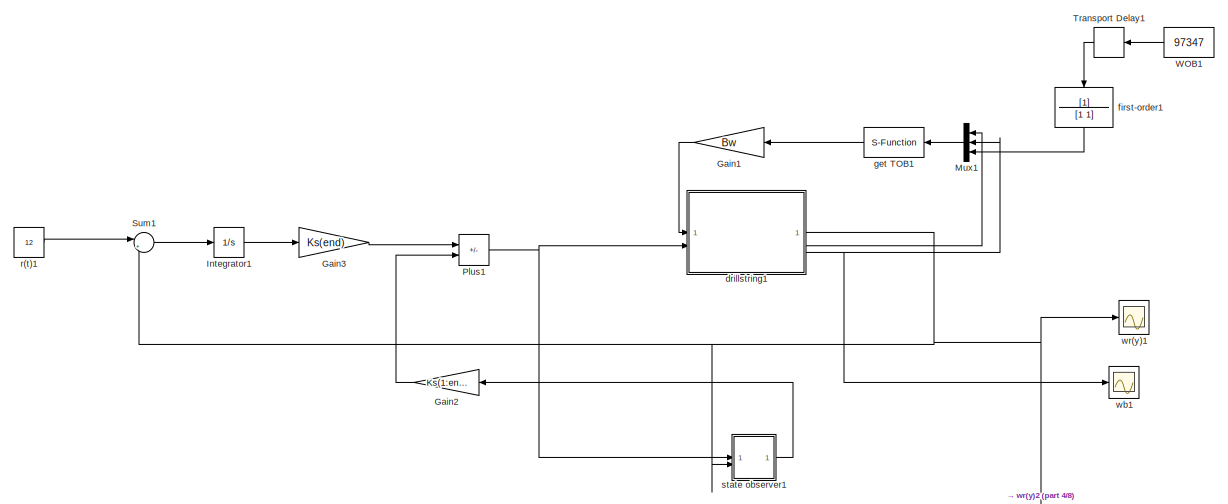
[diagram: root canvas - part 1/8, top right region]
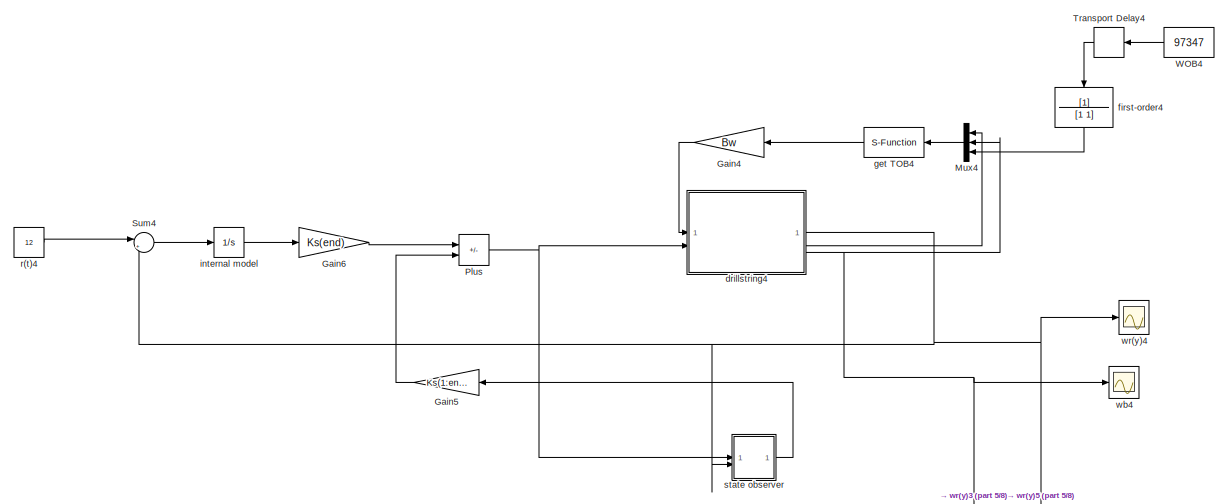
[diagram: root canvas - part 2/8, top left region]
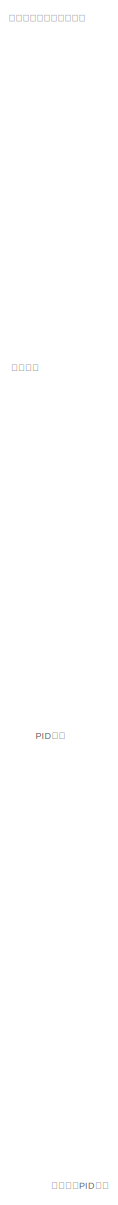
[diagram: root canvas - part 3/8, middle left region]
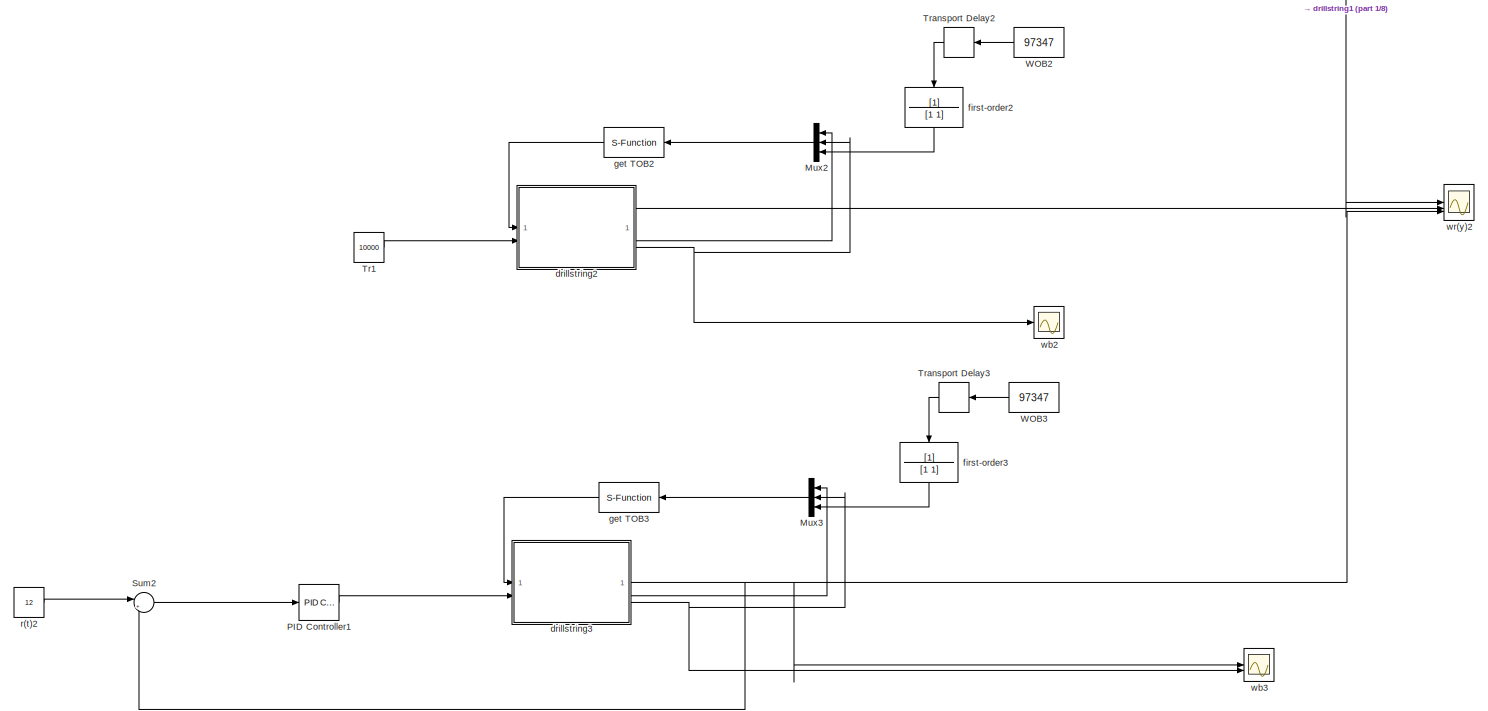
[diagram: root canvas - part 4/8, middle right region]
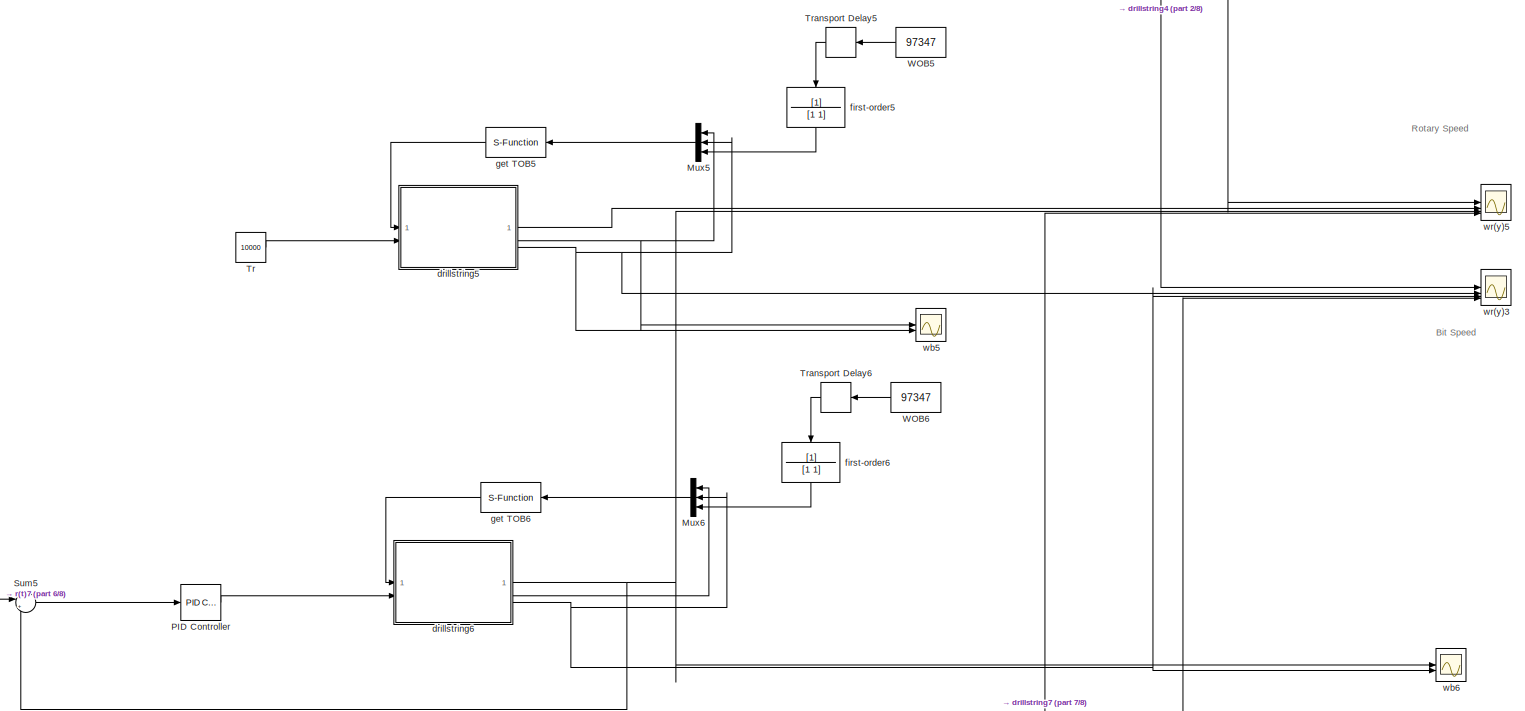
[diagram: root canvas - part 5/8, middle left region]
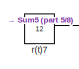
[diagram: root canvas - part 6/8, bottom left region]
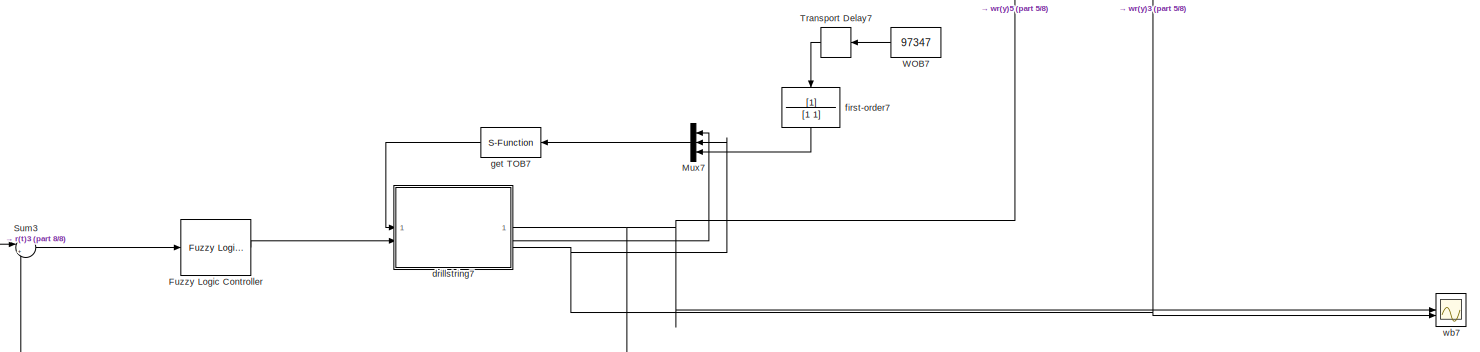
[diagram: root canvas - part 7/8, bottom left region]
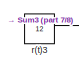
[diagram: root canvas - part 8/8, bottom left region]
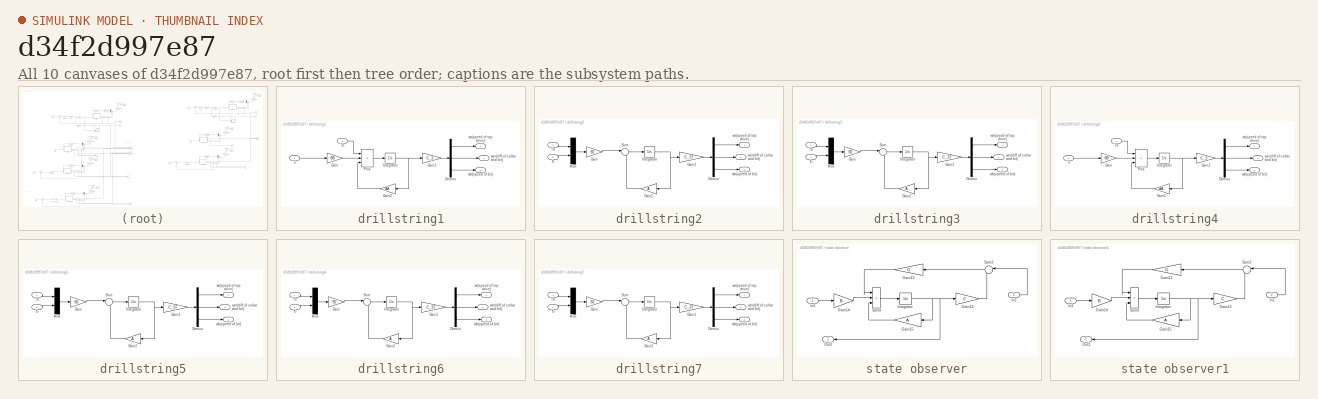
[diagram: thumbnail index - all 10 canvases of the model, root first then tree order]
MODEL slx_d34f2d997e87
KIND model
CONFIG AbsTol = auto
CONFIG EnableMultiTasking = off
CONFIG FixedStep = 0.001
CONFIG MaxStep = auto
CONFIG MinStep = auto
CONFIG RelTol = 1e-3
CONFIG SampleTimeConstraint = Unconstrained
CONFIG SolverName = FixedStepAuto
CONFIG StartTime = 0.0
CONFIG StopTime = 100
BLOCK [Reference] Fuzzy Logic Controller  REF=fuzblock/Fuzzy Logic   (lib defined in mdl_858b3b3e7478)
Controller
  Commented = on
  SourceBlock = fuzblock/Fuzzy Logic \nController
  SourceType = Fuzzy Inference System
BLOCK [Gain] Gain1
  Commented = on
  Gain = Bw
  Multiplication = Matrix(K*u)
  NameLocation = top
BLOCK [Gain] Gain2
  Commented = on
  Gain = Ks(1:end-1)
  Multiplication = Matrix(K*u)
  NameLocation = top
BLOCK [Gain] Gain3
  Commented = on
  Gain = Ks(end)
  Multiplication = Matrix(K*u)
BLOCK [Gain] Gain4
  Gain = Bw
  Multiplication = Matrix(K*u)
  NameLocation = top
BLOCK [Gain] Gain5
  Gain = Ks(1:end-1)
  Multiplication = Matrix(K*u)
  NameLocation = top
BLOCK [Gain] Gain6
  Gain = Ks(end)
  Multiplication = Matrix(K*u)
BLOCK [Integrator] Integrator1
  Commented = on
BLOCK [Mux] Mux1
  Commented = on
  DisplayOption = bar
  Inputs = 3
  NameLocation = top
BLOCK [Mux] Mux2
  Commented = on
  DisplayOption = bar
  Inputs = 3
  NameLocation = top
BLOCK [Mux] Mux3
  Commented = on
  DisplayOption = bar
  Inputs = 3
  NameLocation = top
BLOCK [Mux] Mux4
  DisplayOption = bar
  Inputs = 3
  NameLocation = top
BLOCK [Mux] Mux5
  DisplayOption = bar
  Inputs = 3
  NameLocation = top
BLOCK [Mux] Mux6
  DisplayOption = bar
  Inputs = 3
  NameLocation = top
BLOCK [Mux] Mux7
  Commented = on
  DisplayOption = bar
  Inputs = 3
  NameLocation = top
BLOCK [Reference] PID Controller  REF=slpidlib/PID Controller
  LibrarySourceBlock = simulink/Continuous/PID Controller
  SourceBlock = slpidlib/PID Controller
  SourceType = PID 1dof
BLOCK [Reference] PID Controller1  REF=slpidlib/PID Controller
  Commented = on
  LibrarySourceBlock = simulink/Continuous/PID Controller
  SourceBlock = slpidlib/PID Controller
  SourceType = PID 1dof
BLOCK [Sum] Plus
  IconShape = rectangular
  Inputs = --
BLOCK [Sum] Plus1
  Commented = on
  IconShape = rectangular
  Inputs = --
BLOCK [Sum] Sum1
  Commented = on
  Inputs = |+-
BLOCK [Sum] Sum2
  Commented = on
  Inputs = |+-
BLOCK [Sum] Sum3
  Commented = on
  Inputs = |+-
BLOCK [Sum] Sum4
  Inputs = |+-
BLOCK [Sum] Sum5
  Inputs = |+-
BLOCK [Constant] Tr
  NameLocation = top
  Value = 10000
BLOCK [Constant] Tr1
  Commented = on
  NameLocation = top
  Value = 10000
BLOCK [TransportDelay] Transport Delay1
  Commented = on
  DelayTime = 50
  InitialOutput = 100000
  NameLocation = top
BLOCK [TransportDelay] Transport Delay2
  Commented = on
  DelayTime = 50
  InitialOutput = 100000
  NameLocation = top
BLOCK [TransportDelay] Transport Delay3
  Commented = on
  DelayTime = 50
  InitialOutput = 100000
  NameLocation = top
BLOCK [TransportDelay] Transport Delay4
  DelayTime = 50
  InitialOutput = 100000
  NameLocation = top
BLOCK [TransportDelay] Transport Delay5
  DelayTime = 50
  InitialOutput = 100000
  NameLocation = top
BLOCK [TransportDelay] Transport Delay6
  DelayTime = 50
  InitialOutput = 100000
  NameLocation = top
BLOCK [TransportDelay] Transport Delay7
  Commented = on
  DelayTime = 50
  InitialOutput = 100000
  NameLocation = top
BLOCK [Constant] WOB1
  Commented = on
  NameLocation = top
  Value = 97347
BLOCK [Constant] WOB2
  Commented = on
  NameLocation = top
  Value = 97347
BLOCK [Constant] WOB3
  Commented = on
  NameLocation = top
  Value = 97347
BLOCK [Constant] WOB4
  NameLocation = top
  Value = 97347
BLOCK [Constant] WOB5
  NameLocation = top
  Value = 97347
BLOCK [Constant] WOB6
  NameLocation = top
  Value = 97347
BLOCK [Constant] WOB7
  Commented = on
  NameLocation = top
  Value = 97347
BLOCK [SubSystem] drillstring1
  Commented = on
BLOCK [Demux] drillstring1/Demux
  Outputs = 3
BLOCK [Gain] drillstring1/Gain
  Gain = BB
  Multiplication = Matrix(K*u)
BLOCK [Gain] drillstring1/Gain1
  Gain = C_3
  Multiplication = Matrix(K*u)
BLOCK [Gain] drillstring1/Gain2
  Gain = AA
  Multiplication = Matrix(K*u)
  NameLocation = top
BLOCK [Integrator] drillstring1/Integrator
BLOCK [Sum] drillstring1/Plus
  IconShape = rectangular
  Inputs = +++
BLOCK [Inport] drillstring1/Tb
BLOCK [Inport] drillstring1/Tr
  Port = 2
BLOCK [Outport] drillstring1/wb(speed of bit)
  Port = 3
BLOCK [Outport] drillstring1/wer(diff of collar and bit)
  Port = 2
BLOCK [Outport] drillstring1/wr(speed of top drive)
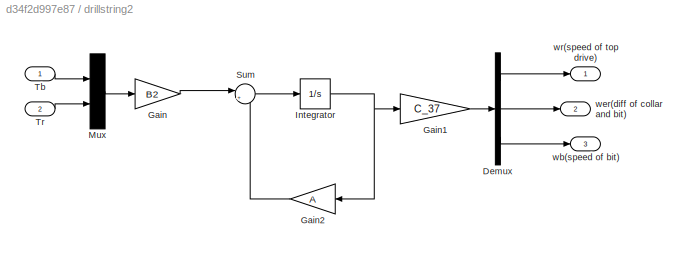
BLOCK [SubSystem] drillstring2
  Commented = on
BLOCK [Demux] drillstring2/Demux
  Outputs = 3
BLOCK [Gain] drillstring2/Gain
  Gain = B2
  Multiplication = Matrix(K*u)
BLOCK [Gain] drillstring2/Gain1
  Gain = C_37
  Multiplication = Matrix(K*u)
BLOCK [Gain] drillstring2/Gain2
  Gain = A
  Multiplication = Matrix(K*u)
  NameLocation = top
BLOCK [Integrator] drillstring2/Integrator
BLOCK [Mux] drillstring2/Mux
  DisplayOption = bar
  Inputs = 2
BLOCK [Sum] drillstring2/Sum
  Inputs = |++
BLOCK [Inport] drillstring2/Tb
BLOCK [Inport] drillstring2/Tr
  Port = 2
BLOCK [Outport] drillstring2/wb(speed of bit)
  Port = 3
BLOCK [Outport] drillstring2/wer(diff of collar and bit)
  Port = 2
BLOCK [Outport] drillstring2/wr(speed of top drive)
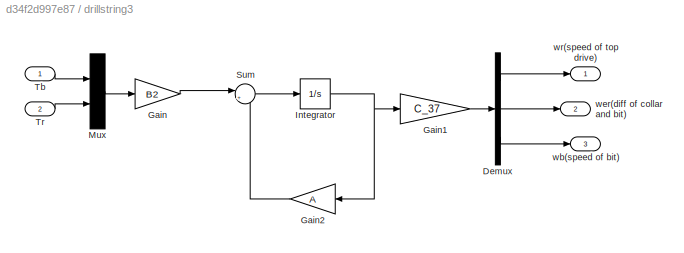
BLOCK [SubSystem] drillstring3
  Commented = on
BLOCK [Demux] drillstring3/Demux
  Outputs = 3
BLOCK [Gain] drillstring3/Gain
  Gain = B2
  Multiplication = Matrix(K*u)
BLOCK [Gain] drillstring3/Gain1
  Gain = C_37
  Multiplication = Matrix(K*u)
BLOCK [Gain] drillstring3/Gain2
  Gain = A
  Multiplication = Matrix(K*u)
  NameLocation = top
BLOCK [Integrator] drillstring3/Integrator
BLOCK [Mux] drillstring3/Mux
  DisplayOption = bar
  Inputs = 2
BLOCK [Sum] drillstring3/Sum
  Inputs = |++
BLOCK [Inport] drillstring3/Tb
BLOCK [Inport] drillstring3/Tr
  Port = 2
BLOCK [Outport] drillstring3/wb(speed of bit)
  Port = 3
BLOCK [Outport] drillstring3/wer(diff of collar and bit)
  Port = 2
BLOCK [Outport] drillstring3/wr(speed of top drive)
BLOCK [SubSystem] drillstring4
BLOCK [Demux] drillstring4/Demux
  Outputs = 3
BLOCK [Gain] drillstring4/Gain
  Gain = BB
  Multiplication = Matrix(K*u)
BLOCK [Gain] drillstring4/Gain1
  Gain = C_3
  Multiplication = Matrix(K*u)
BLOCK [Gain] drillstring4/Gain2
  Gain = AA
  Multiplication = Matrix(K*u)
  NameLocation = top
BLOCK [Integrator] drillstring4/Integrator
BLOCK [Sum] drillstring4/Plus
  IconShape = rectangular
  Inputs = +++
BLOCK [Inport] drillstring4/Tb
BLOCK [Inport] drillstring4/Tr
  Port = 2
BLOCK [Outport] drillstring4/wb(speed of bit)
  Port = 3
BLOCK [Outport] drillstring4/wer(diff of collar and bit)
  Port = 2
BLOCK [Outport] drillstring4/wr(speed of top drive)
BLOCK [SubSystem] drillstring5
BLOCK [Demux] drillstring5/Demux
  Outputs = 3
BLOCK [Gain] drillstring5/Gain
  Gain = B2
  Multiplication = Matrix(K*u)
BLOCK [Gain] drillstring5/Gain1
  Gain = C_37
  Multiplication = Matrix(K*u)
BLOCK [Gain] drillstring5/Gain2
  Gain = A
  Multiplication = Matrix(K*u)
  NameLocation = top
BLOCK [Integrator] drillstring5/Integrator
BLOCK [Mux] drillstring5/Mux
  DisplayOption = bar
  Inputs = 2
BLOCK [Sum] drillstring5/Sum
  Inputs = |++
BLOCK [Inport] drillstring5/Tb
BLOCK [Inport] drillstring5/Tr
  Port = 2
BLOCK [Outport] drillstring5/wb(speed of bit)
  Port = 3
BLOCK [Outport] drillstring5/wer(diff of collar and bit)
  Port = 2
BLOCK [Outport] drillstring5/wr(speed of top drive)
BLOCK [SubSystem] drillstring6
BLOCK [Demux] drillstring6/Demux
  Outputs = 3
BLOCK [Gain] drillstring6/Gain
  Gain = B2
  Multiplication = Matrix(K*u)
BLOCK [Gain] drillstring6/Gain1
  Gain = C_37
  Multiplication = Matrix(K*u)
BLOCK [Gain] drillstring6/Gain2
  Gain = A
  Multiplication = Matrix(K*u)
  NameLocation = top
BLOCK [Integrator] drillstring6/Integrator
BLOCK [Mux] drillstring6/Mux
  DisplayOption = bar
  Inputs = 2
BLOCK [Sum] drillstring6/Sum
  Inputs = |++
BLOCK [Inport] drillstring6/Tb
BLOCK [Inport] drillstring6/Tr
  Port = 2
BLOCK [Outport] drillstring6/wb(speed of bit)
  Port = 3
BLOCK [Outport] drillstring6/wer(diff of collar and bit)
  Port = 2
BLOCK [Outport] drillstring6/wr(speed of top drive)
BLOCK [SubSystem] drillstring7
  Commented = on
BLOCK [Demux] drillstring7/Demux
  Outputs = 3
BLOCK [Gain] drillstring7/Gain
  Gain = B2
  Multiplication = Matrix(K*u)
BLOCK [Gain] drillstring7/Gain1
  Gain = C_37
  Multiplication = Matrix(K*u)
BLOCK [Gain] drillstring7/Gain2
  Gain = A
  Multiplication = Matrix(K*u)
  NameLocation = top
BLOCK [Integrator] drillstring7/Integrator
BLOCK [Mux] drillstring7/Mux
  DisplayOption = bar
  Inputs = 2
BLOCK [Sum] drillstring7/Sum
  Inputs = |++
BLOCK [Inport] drillstring7/Tb
BLOCK [Inport] drillstring7/Tr
  Port = 2
BLOCK [Outport] drillstring7/wb(speed of bit)
  Port = 3
BLOCK [Outport] drillstring7/wer(diff of collar and bit)
  Port = 2
BLOCK [Outport] drillstring7/wr(speed of top drive)
BLOCK [TransferFcn] first-order1
  Commented = on
  Denominator = [1 1]
  NameLocation = left
BLOCK [TransferFcn] first-order2
  Commented = on
  Denominator = [1 1]
  NameLocation = left
BLOCK [TransferFcn] first-order3
  Commented = on
  Denominator = [1 1]
  NameLocation = left
BLOCK [TransferFcn] first-order4
  Denominator = [1 1]
  NameLocation = left
BLOCK [TransferFcn] first-order5
  Denominator = [1 1]
  NameLocation = left
BLOCK [TransferFcn] first-order6
  Denominator = [1 1]
  NameLocation = left
BLOCK [TransferFcn] first-order7
  Commented = on
  Denominator = [1 1]
  NameLocation = left
BLOCK [S-Function] get TOB1
  Commented = on
  EnableBusSupport = off
  FunctionName = bitrock
  SFcnIsStateOwnerBlock = off
  SFunctionDeploymentMode = off
BLOCK [S-Function] get TOB2
  Commented = on
  EnableBusSupport = off
  FunctionName = bitrock
  SFcnIsStateOwnerBlock = off
  SFunctionDeploymentMode = off
BLOCK [S-Function] get TOB3
  Commented = on
  EnableBusSupport = off
  FunctionName = bitrock
  SFcnIsStateOwnerBlock = off
  SFunctionDeploymentMode = off
BLOCK [S-Function] get TOB4
  EnableBusSupport = off
  FunctionName = bitrock
  SFcnIsStateOwnerBlock = off
  SFunctionDeploymentMode = off
BLOCK [S-Function] get TOB5
  EnableBusSupport = off
  FunctionName = bitrock
  SFcnIsStateOwnerBlock = off
  SFunctionDeploymentMode = off
BLOCK [S-Function] get TOB6
  EnableBusSupport = off
  FunctionName = bitrock
  SFcnIsStateOwnerBlock = off
  SFunctionDeploymentMode = off
BLOCK [S-Function] get TOB7
  Commented = on
  EnableBusSupport = off
  FunctionName = bitrock
  SFcnIsStateOwnerBlock = off
  SFunctionDeploymentMode = off
BLOCK [Integrator] internal model
BLOCK [Constant] r(t)1
  Commented = on
  NameLocation = top
  Value = 12
BLOCK [Constant] r(t)2
  Commented = on
  NameLocation = top
  Value = 12
BLOCK [Constant] r(t)3
  Commented = on
  NameLocation = top
  Value = 12
BLOCK [Constant] r(t)4
  NameLocation = top
  Value = 12
BLOCK [Constant] r(t)7
  NameLocation = top
  Value = 12
BLOCK [SubSystem] state observer
BLOCK [Gain] state observer/Gain12
  Gain = G
  Multiplication = Matrix(K*u)
  NameLocation = top
BLOCK [Gain] state observer/Gain13
  Gain = C
  Multiplication = Matrix(K*u)
BLOCK [Gain] state observer/Gain14
  Gain = B
  Multiplication = Matrix(K*u)
BLOCK [Gain] state observer/Gain15
  Gain = A
  Multiplication = Matrix(K*u)
  NameLocation = top
BLOCK [Inport] state observer/In1
BLOCK [Inport] state observer/In2
  Port = 2
BLOCK [Integrator] state observer/Integrator
BLOCK [Outport] state observer/Out1
  NameLocation = top
BLOCK [Sum] state observer/Sum3
  Inputs = |+-
  NameLocation = top
BLOCK [Sum] state observer/Sum4
  IconShape = rectangular
  Inputs = |+++
BLOCK [SubSystem] state observer1
  Commented = on
BLOCK [Gain] state observer1/Gain12
  Gain = G
  Multiplication = Matrix(K*u)
  NameLocation = top
BLOCK [Gain] state observer1/Gain13
  Gain = C
  Multiplication = Matrix(K*u)
BLOCK [Gain] state observer1/Gain14
  Gain = B
  Multiplication = Matrix(K*u)
BLOCK [Gain] state observer1/Gain15
  Gain = A
  Multiplication = Matrix(K*u)
  NameLocation = top
BLOCK [Inport] state observer1/In1
BLOCK [Inport] state observer1/In2
  Port = 2
BLOCK [Integrator] state observer1/Integrator
BLOCK [Outport] state observer1/Out1
  NameLocation = top
BLOCK [Sum] state observer1/Sum3
  Inputs = |+-
  NameLocation = top
BLOCK [Sum] state observer1/Sum4
  IconShape = rectangular
  Inputs = |+++
BLOCK [Scope] wb1
  Commented = on
  Floating = off
  NumInputPorts = 1
  ScopeSpecificationString = Simulink.scopes.TimeScopeBlockCfg('CurrentConfiguration', extmgr.ConfigurationSet(extmgr.Configuration('Core','General UI',true),extmgr.Configuration('Core','Source UI',true),extmgr.Configuration('Sources','WiredSimulink',true),extmgr.Configuration('Visuals','Time Domain',true,'SerializedDisplays',{struct('MinYLimReal','-1.07784','MaxYLimReal','20','YLabelReal','','MinYLimMag','0.00000','MaxYLimMa...<+1515ch>
BLOCK [Scope] wb2
  Commented = on
  Floating = off
  NumInputPorts = 1
  ScopeSpecificationString = Simulink.scopes.TimeScopeBlockCfg('CurrentConfiguration', extmgr.ConfigurationSet(extmgr.Configuration('Core','General UI',true),extmgr.Configuration('Core','Source UI',true),extmgr.Configuration('Sources','WiredSimulink',true,'DataLoggingVariableName','ScopeData1'),extmgr.Configuration('Visuals','Time Domain',true,'SerializedDisplays',{struct('MinYLimReal','-1.07784','MaxYLimReal','20','YLabelRea...<+1554ch>
BLOCK [Scope] wb3
  Commented = on
  Floating = off
  NumInputPorts = 2
  ScopeSpecificationString = Simulink.scopes.TimeScopeBlockCfg('CurrentConfiguration', extmgr.ConfigurationSet(extmgr.Configuration('Core','General UI',true),extmgr.Configuration('Core','Source UI',true),extmgr.Configuration('Sources','WiredSimulink',true,'DataLoggingVariableName','ScopeData2'),extmgr.Configuration('Visuals','Time Domain',true,'SerializedDisplays',{struct('MinYLimReal','-1.07784','MaxYLimReal','20','YLabelRea...<+1575ch>
BLOCK [Scope] wb4
  Floating = off
  NumInputPorts = 1
  ScopeSpecificationString = Simulink.scopes.TimeScopeBlockCfg('CurrentConfiguration', extmgr.ConfigurationSet(extmgr.Configuration('Core','General UI',true),extmgr.Configuration('Core','Source UI',true),extmgr.Configuration('Sources','WiredSimulink',true,'DataLoggingVariableName','ScopeData7'),extmgr.Configuration('Visuals','Time Domain',true,'SerializedDisplays',{struct('MinYLimReal','-1.07784','MaxYLimReal','20','YLabelRea...<+1554ch>
BLOCK [Scope] wb5
  Floating = off
  NumInputPorts = 2
  ScopeSpecificationString = Simulink.scopes.TimeScopeBlockCfg('CurrentConfiguration', extmgr.ConfigurationSet(extmgr.Configuration('Core','General UI',true),extmgr.Configuration('Core','Source UI',true),extmgr.Configuration('Sources','WiredSimulink',true,'DataLoggingVariableName','ScopeData9'),extmgr.Configuration('Visuals','Time Domain',true,'SerializedDisplays',{struct('MinYLimReal','-1.07784','MaxYLimReal','20','YLabelRea...<+1554ch>
BLOCK [Scope] wb6
  Floating = off
  NumInputPorts = 2
  ScopeSpecificationString = Simulink.scopes.TimeScopeBlockCfg('CurrentConfiguration', extmgr.ConfigurationSet(extmgr.Configuration('Core','General UI',true),extmgr.Configuration('Core','Source UI',true),extmgr.Configuration('Sources','WiredSimulink',true,'DataLoggingVariableName','ScopeData11'),extmgr.Configuration('Visuals','Time Domain',true,'SerializedDisplays',{struct('MinYLimReal','-1.07784','MaxYLimReal','20','YLabelRe...<+1576ch>
BLOCK [Scope] wb7
  Commented = on
  Floating = off
  NumInputPorts = 2
  ScopeSpecificationString = Simulink.scopes.TimeScopeBlockCfg('CurrentConfiguration', extmgr.ConfigurationSet(extmgr.Configuration('Core','General UI',true),extmgr.Configuration('Core','Source UI',true),extmgr.Configuration('Sources','WiredSimulink',true,'DataLoggingVariableName','ScopeData1'),extmgr.Configuration('Visuals','Time Domain',true,'SerializedDisplays',{struct('MinYLimReal','-1.07784','MaxYLimReal','20','YLabelRea...<+1572ch>
BLOCK [Scope] wr(y)1
  Commented = on
  Floating = off
  NumInputPorts = 1
  ScopeSpecificationString = Simulink.scopes.TimeScopeBlockCfg('CurrentConfiguration', extmgr.ConfigurationSet(extmgr.Configuration('Core','General UI',true),extmgr.Configuration('Core','Source UI',true),extmgr.Configuration('Sources','WiredSimulink',true,'DataLoggingVariableName','ScopeData3'),extmgr.Configuration('Visuals','Time Domain',true,'SerializedDisplays',{struct('MinYLimReal','0','MaxYLimReal','20','YLabelReal','','...<+1540ch>
BLOCK [Scope] wr(y)2
  Commented = on
  Floating = off
  NumInputPorts = 3
  ScopeSpecificationString = Simulink.scopes.TimeScopeBlockCfg('CurrentConfiguration', extmgr.ConfigurationSet(extmgr.Configuration('Core','General UI',true,'FigureColor',[0 0 0]),extmgr.Configuration('Core','Source UI',true),extmgr.Configuration('Sources','WiredSimulink',true,'DataLoggingVariableName','ScopeData4'),extmgr.Configuration('Visuals','Time Domain',true,'SerializedDisplays',{struct('MinYLimReal','-2','MaxYLimReal'...<+1933ch>
BLOCK [Scope] wr(y)3
  Floating = off
  NumInputPorts = 4
  ScopeSpecificationString = Simulink.scopes.TimeScopeBlockCfg('CurrentConfiguration', extmgr.ConfigurationSet(extmgr.Configuration('Core','General UI',true,'FigureColor',[0 0 0]),extmgr.Configuration('Core','Source UI',true),extmgr.Configuration('Sources','WiredSimulink',true,'DataLoggingVariableName','ScopeData5'),extmgr.Configuration('Visuals','Time Domain',true,'SerializedDisplays',{struct('MinYLimReal','-2','MaxYLimReal'...<+1934ch>
BLOCK [Scope] wr(y)4
  Floating = off
  NumInputPorts = 1
  ScopeSpecificationString = Simulink.scopes.TimeScopeBlockCfg('CurrentConfiguration', extmgr.ConfigurationSet(extmgr.Configuration('Core','General UI',true),extmgr.Configuration('Core','Source UI',true),extmgr.Configuration('Sources','WiredSimulink',true,'DataLoggingVariableName','ScopeData8'),extmgr.Configuration('Visuals','Time Domain',true,'SerializedDisplays',{struct('MinYLimReal','0','MaxYLimReal','20','YLabelReal','','...<+1540ch>
BLOCK [Scope] wr(y)5
  Floating = off
  NumInputPorts = 4
  ScopeSpecificationString = Simulink.scopes.TimeScopeBlockCfg('CurrentConfiguration', extmgr.ConfigurationSet(extmgr.Configuration('Core','General UI',true,'FigureColor',[0 0 0]),extmgr.Configuration('Core','Source UI',true),extmgr.Configuration('Sources','WiredSimulink',true,'DataLoggingVariableName','ScopeData10'),extmgr.Configuration('Visuals','Time Domain',true,'SerializedDisplays',{struct('MinYLimReal','-2','MaxYLimReal...<+1913ch>
ANNOTATION (root): PID控制
ANNOTATION (root): 单神经元PID控制
ANNOTATION (root): 未加控制
ANNOTATION (root): 状态观测器状态反馈控制
ANNOTATION (root): Bit Speed
ANNOTATION (root): Rotary Speed
LINE Fuzzy Logic Controller:1 -> drillstring7:2
LINE Gain1:1 -> drillstring1:1
LINE Gain2:1 -> Plus1:2
LINE Gain3:1 -> Plus1:1
LINE Gain4:1 -> drillstring4:1
LINE Gain5:1 -> Plus:2
LINE Gain6:1 -> Plus:1
LINE Integrator1:1 -> Gain3:1
LINE Mux1:1 -> get TOB1:1
LINE Mux2:1 -> get TOB2:1
LINE Mux3:1 -> get TOB3:1
LINE Mux4:1 -> get TOB4:1
LINE Mux5:1 -> get TOB5:1
LINE Mux6:1 -> get TOB6:1
LINE Mux7:1 -> get TOB7:1
LINE PID Controller1:1 -> drillstring3:2
LINE PID Controller:1 -> drillstring6:2
NET Plus1:1 -> drillstring1:2, state observer1:1
NET Plus:1 -> drillstring4:2, state observer:1
LINE Sum1:1 -> Integrator1:1
LINE Sum2:1 -> PID Controller1:1
LINE Sum3:1 -> Fuzzy Logic Controller:1
LINE Sum4:1 -> internal model:1
LINE Sum5:1 -> PID Controller:1
LINE Tr1:1 -> drillstring2:2
LINE Tr:1 -> drillstring5:2
LINE Transport Delay1:1 -> first-order1:1
LINE Transport Delay2:1 -> first-order2:1
LINE Transport Delay3:1 -> first-order3:1
LINE Transport Delay4:1 -> first-order4:1
LINE Transport Delay5:1 -> first-order5:1
LINE Transport Delay6:1 -> first-order6:1
LINE Transport Delay7:1 -> first-order7:1
LINE WOB1:1 -> Transport Delay1:1
LINE WOB2:1 -> Transport Delay2:1
LINE WOB3:1 -> Transport Delay3:1
LINE WOB4:1 -> Transport Delay4:1
LINE WOB5:1 -> Transport Delay5:1
LINE WOB6:1 -> Transport Delay6:1
LINE WOB7:1 -> Transport Delay7:1
LINE drillstring1/Demux:1 -> drillstring1/wr(speed of top drive):1
LINE drillstring1/Demux:2 -> drillstring1/wer(diff of collar and bit):1
LINE drillstring1/Demux:3 -> drillstring1/wb(speed of bit):1
LINE drillstring1/Gain1:1 -> drillstring1/Demux:1
LINE drillstring1/Gain2:1 -> drillstring1/Plus:3
LINE drillstring1/Gain:1 -> drillstring1/Plus:2
NET drillstring1/Integrator:1 -> drillstring1/Gain1:1, drillstring1/Gain2:1
LINE drillstring1/Plus:1 -> drillstring1/Integrator:1
LINE drillstring1/Tb:1 -> drillstring1/Plus:1
LINE drillstring1/Tr:1 -> drillstring1/Gain:1
NET drillstring1:1 -> Sum1:2, state observer1:2, wr(y)1:1, wr(y)2:1
LINE drillstring1:2 -> Mux1:1
NET drillstring1:3 -> Mux1:2, wb1:1
LINE drillstring2/Demux:1 -> drillstring2/wr(speed of top drive):1
LINE drillstring2/Demux:2 -> drillstring2/wer(diff of collar and bit):1
LINE drillstring2/Demux:3 -> drillstring2/wb(speed of bit):1
LINE drillstring2/Gain1:1 -> drillstring2/Demux:1
LINE drillstring2/Gain2:1 -> drillstring2/Sum:2
LINE drillstring2/Gain:1 -> drillstring2/Sum:1
NET drillstring2/Integrator:1 -> drillstring2/Gain1:1, drillstring2/Gain2:1
LINE drillstring2/Mux:1 -> drillstring2/Gain:1
LINE drillstring2/Sum:1 -> drillstring2/Integrator:1
LINE drillstring2/Tb:1 -> drillstring2/Mux:1
LINE drillstring2/Tr:1 -> drillstring2/Mux:2
LINE drillstring2:1 -> wr(y)2:2
LINE drillstring2:2 -> Mux2:1
NET drillstring2:3 -> Mux2:2, wb2:1
LINE drillstring3/Demux:1 -> drillstring3/wr(speed of top drive):1
LINE drillstring3/Demux:2 -> drillstring3/wer(diff of collar and bit):1
LINE drillstring3/Demux:3 -> drillstring3/wb(speed of bit):1
LINE drillstring3/Gain1:1 -> drillstring3/Demux:1
LINE drillstring3/Gain2:1 -> drillstring3/Sum:2
LINE drillstring3/Gain:1 -> drillstring3/Sum:1
NET drillstring3/Integrator:1 -> drillstring3/Gain1:1, drillstring3/Gain2:1
LINE drillstring3/Mux:1 -> drillstring3/Gain:1
LINE drillstring3/Sum:1 -> drillstring3/Integrator:1
LINE drillstring3/Tb:1 -> drillstring3/Mux:1
LINE drillstring3/Tr:1 -> drillstring3/Mux:2
NET drillstring3:1 -> Sum2:2, wb3:1, wr(y)2:3
LINE drillstring3:2 -> Mux3:1
NET drillstring3:3 -> Mux3:2, wb3:2
LINE drillstring4/Demux:1 -> drillstring4/wr(speed of top drive):1
LINE drillstring4/Demux:2 -> drillstring4/wer(diff of collar and bit):1
LINE drillstring4/Demux:3 -> drillstring4/wb(speed of bit):1
LINE drillstring4/Gain1:1 -> drillstring4/Demux:1
LINE drillstring4/Gain2:1 -> drillstring4/Plus:3
LINE drillstring4/Gain:1 -> drillstring4/Plus:2
NET drillstring4/Integrator:1 -> drillstring4/Gain1:1, drillstring4/Gain2:1
LINE drillstring4/Plus:1 -> drillstring4/Integrator:1
LINE drillstring4/Tb:1 -> drillstring4/Plus:1
LINE drillstring4/Tr:1 -> drillstring4/Gain:1
NET drillstring4:1 -> Sum4:2, state observer:2, wr(y)4:1, wr(y)5:1
LINE drillstring4:2 -> Mux4:1
NET drillstring4:3 -> Mux4:2, wb4:1, wr(y)3:1
LINE drillstring5/Demux:1 -> drillstring5/wr(speed of top drive):1
LINE drillstring5/Demux:2 -> drillstring5/wer(diff of collar and bit):1
LINE drillstring5/Demux:3 -> drillstring5/wb(speed of bit):1
LINE drillstring5/Gain1:1 -> drillstring5/Demux:1
LINE drillstring5/Gain2:1 -> drillstring5/Sum:2
LINE drillstring5/Gain:1 -> drillstring5/Sum:1
NET drillstring5/Integrator:1 -> drillstring5/Gain1:1, drillstring5/Gain2:1
LINE drillstring5/Mux:1 -> drillstring5/Gain:1
LINE drillstring5/Sum:1 -> drillstring5/Integrator:1
LINE drillstring5/Tb:1 -> drillstring5/Mux:1
LINE drillstring5/Tr:1 -> drillstring5/Mux:2
LINE drillstring5:1 -> wr(y)5:2
NET drillstring5:2 -> Mux5:1, wb5:1
NET drillstring5:3 -> Mux5:2, wb5:2, wr(y)3:2
LINE drillstring6/Demux:1 -> drillstring6/wr(speed of top drive):1
LINE drillstring6/Demux:2 -> drillstring6/wer(diff of collar and bit):1
LINE drillstring6/Demux:3 -> drillstring6/wb(speed of bit):1
LINE drillstring6/Gain1:1 -> drillstring6/Demux:1
LINE drillstring6/Gain2:1 -> drillstring6/Sum:2
LINE drillstring6/Gain:1 -> drillstring6/Sum:1
NET drillstring6/Integrator:1 -> drillstring6/Gain1:1, drillstring6/Gain2:1
LINE drillstring6/Mux:1 -> drillstring6/Gain:1
LINE drillstring6/Sum:1 -> drillstring6/Integrator:1
LINE drillstring6/Tb:1 -> drillstring6/Mux:1
LINE drillstring6/Tr:1 -> drillstring6/Mux:2
NET drillstring6:1 -> Sum5:2, wb6:1, wr(y)5:3
LINE drillstring6:2 -> Mux6:1
NET drillstring6:3 -> Mux6:2, wb6:2, wr(y)3:3
LINE drillstring7/Demux:1 -> drillstring7/wr(speed of top drive):1
LINE drillstring7/Demux:2 -> drillstring7/wer(diff of collar and bit):1
LINE drillstring7/Demux:3 -> drillstring7/wb(speed of bit):1
LINE drillstring7/Gain1:1 -> drillstring7/Demux:1
LINE drillstring7/Gain2:1 -> drillstring7/Sum:2
LINE drillstring7/Gain:1 -> drillstring7/Sum:1
NET drillstring7/Integrator:1 -> drillstring7/Gain1:1, drillstring7/Gain2:1
LINE drillstring7/Mux:1 -> drillstring7/Gain:1
LINE drillstring7/Sum:1 -> drillstring7/Integrator:1
LINE drillstring7/Tb:1 -> drillstring7/Mux:1
LINE drillstring7/Tr:1 -> drillstring7/Mux:2
NET drillstring7:1 -> Sum3:2, wb7:1, wr(y)5:4
LINE drillstring7:2 -> Mux7:1
NET drillstring7:3 -> Mux7:2, wb7:2, wr(y)3:4
LINE first-order1:1 -> Mux1:3
LINE first-order2:1 -> Mux2:3
LINE first-order3:1 -> Mux3:3
LINE first-order4:1 -> Mux4:3
LINE first-order5:1 -> Mux5:3
LINE first-order6:1 -> Mux6:3
LINE first-order7:1 -> Mux7:3
LINE get TOB1:1 -> Gain1:1
LINE get TOB2:1 -> drillstring2:1
LINE get TOB3:1 -> drillstring3:1
LINE get TOB4:1 -> Gain4:1
LINE get TOB5:1 -> drillstring5:1
LINE get TOB6:1 -> drillstring6:1
LINE get TOB7:1 -> drillstring7:1
LINE internal model:1 -> Gain6:1
LINE r(t)1:1 -> Sum1:1
LINE r(t)2:1 -> Sum2:1
LINE r(t)3:1 -> Sum3:1
LINE r(t)4:1 -> Sum4:1
LINE r(t)7:1 -> Sum5:1
LINE state observer/Gain12:1 -> state observer/Sum4:1
LINE state observer/Gain13:1 -> state observer/Sum3:2
LINE state observer/Gain14:1 -> state observer/Sum4:2
LINE state observer/Gain15:1 -> state observer/Sum4:3
LINE state observer/In1:1 -> state observer/Gain14:1
LINE state observer/In2:1 -> state observer/Sum3:1
NET state observer/Integrator:1 -> state observer/Gain13:1, state observer/Gain15:1, state observer/Out1:1
LINE state observer/Sum3:1 -> state observer/Gain12:1
LINE state observer/Sum4:1 -> state observer/Integrator:1
LINE state observer1/Gain12:1 -> state observer1/Sum4:1
LINE state observer1/Gain13:1 -> state observer1/Sum3:2
LINE state observer1/Gain14:1 -> state observer1/Sum4:2
LINE state observer1/Gain15:1 -> state observer1/Sum4:3
LINE state observer1/In1:1 -> state observer1/Gain14:1
LINE state observer1/In2:1 -> state observer1/Sum3:1
NET state observer1/Integrator:1 -> state observer1/Gain13:1, state observer1/Gain15:1, state observer1/Out1:1
LINE state observer1/Sum3:1 -> state observer1/Gain12:1
LINE state observer1/Sum4:1 -> state observer1/Integrator:1
LINE state observer1:1 -> Gain2:1
LINE state observer:1 -> Gain5:1
note: NET lines group one-source signal fan-out (src -> all destinations, sorted); 1:1 wires keep LINE
